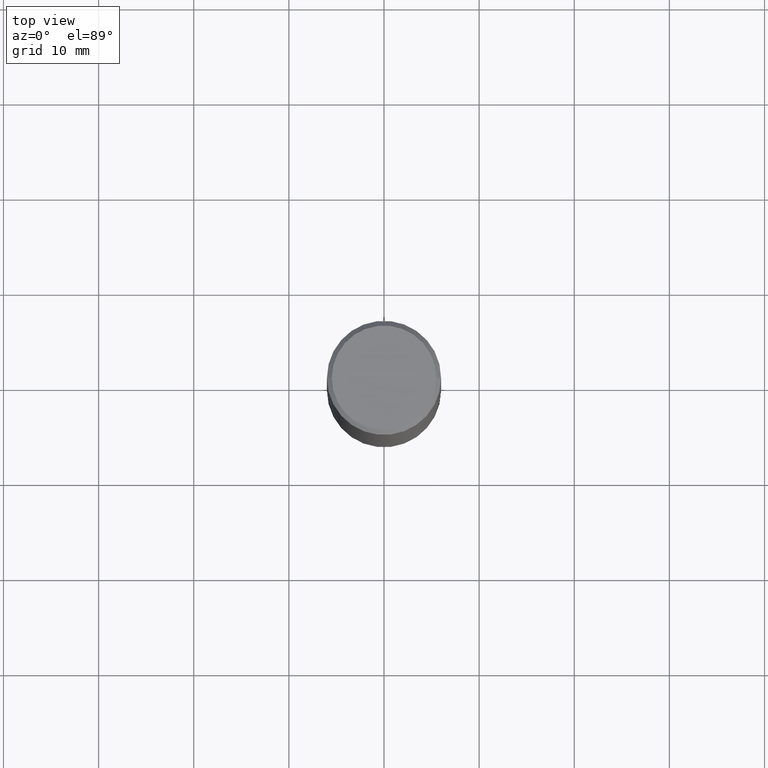
[diagram: clean part render]
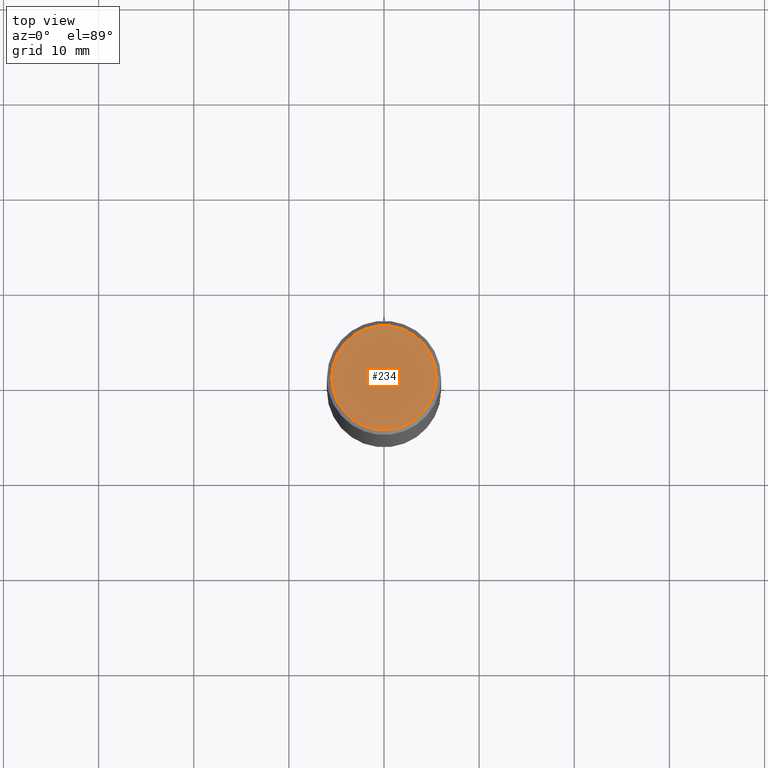
[diagram: same view with one face highlighted and labeled with its STEP entity id]
A machine part, top view. The second image highlights one B-rep face of the part: STEP entity #234.
In plain terms, the highlighted planar face has unit normal (0, -0, -1).
Its self-contained STEP definition (entity closure, byte-faithful):
#23 = DIRECTION ( 'NONE',  ( -2.445468806185136597E-29, 3.491481338843145583E-15, 1.000000000000000000 ) ) ;
#90 = ORIENTED_EDGE ( 'NONE', *, *, #286, .T. ) ;
#96 = EDGE_LOOP ( 'NONE', ( #90, #263 ) ) ;
#108 = DIRECTION ( 'NONE',  ( 1.000000000000000000, -6.982962677686266711E-15, 4.875778670202492554E-29 ) ) ;
#140 = CARTESIAN_POINT ( 'NONE',  ( 0.2161999999999996980, -1.586759460484350016E-15, 8.537024980211650906E-18 ) ) ;
#167 = DIRECTION ( 'NONE',  ( -1.000000000000000000, 6.982962677686265922E-15, -4.876176775795935793E-29 ) ) ;
#184 = AXIS2_PLACEMENT_3D ( 'NONE', #279, #254, #108 ) ;
#188 = VERTEX_POINT ( 'NONE', #140 ) ;
#189 = CIRCLE ( 'NONE', #236, 0.2161999999999996980 ) ;
#221 = DIRECTION ( 'NONE',  ( 1.000000000000000000, -6.982962677686266711E-15, 4.875778670202492554E-29 ) ) ;
#234 = ADVANCED_FACE ( 'NONE', ( #245 ), #363, .F. ) ;
#236 = AXIS2_PLACEMENT_3D ( 'NONE', #276, #23, #221 ) ;
#245 = FACE_OUTER_BOUND ( 'NONE', #96, .T. ) ;
#254 = DIRECTION ( 'NONE',  ( -2.445468806185136597E-29, 3.491481338843145583E-15, 1.000000000000000000 ) ) ;
#257 = VERTEX_POINT ( 'NONE', #302 ) ;
#258 = EDGE_CURVE ( 'NONE', #188, #257, #333, .T. ) ;
#263 = ORIENTED_EDGE ( 'NONE', *, *, #258, .T. ) ;
#264 = AXIS2_PLACEMENT_3D ( 'NONE', #307, #336, #167 ) ;
#276 = CARTESIAN_POINT ( 'NONE',  ( -2.087702828670439639E-46, 2.980686340760894400E-32, 8.537024980200822558E-18 ) ) ;
#279 = CARTESIAN_POINT ( 'NONE',  ( -2.087702828670439639E-46, 2.980686340760894400E-32, 8.537024980200822558E-18 ) ) ;
#286 = EDGE_CURVE ( 'NONE', #257, #188, #189, .T. ) ;
#302 = CARTESIAN_POINT ( 'NONE',  ( -0.2161999999999996980, 1.544631344304200000E-15, 8.537024980190142121E-18 ) ) ;
#307 = CARTESIAN_POINT ( 'NONE',  ( 1.509716530915768548E-15, 0.2161999999999996980, -7.505897529677867071E-16 ) ) ;
#333 = CIRCLE ( 'NONE', #184, 0.2161999999999996980 ) ;
#336 = DIRECTION ( 'NONE',  ( 2.438088387897960049E-29, -3.491481338843145188E-15, -1.000000000000000000 ) ) ;
#363 = PLANE ( 'NONE',  #264 ) ;